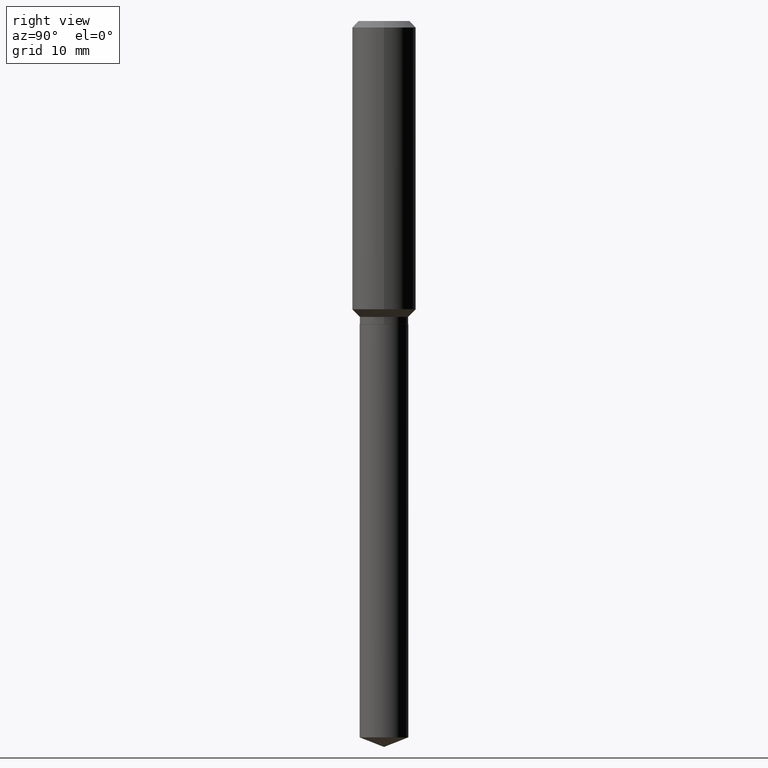
[diagram: clean part render]
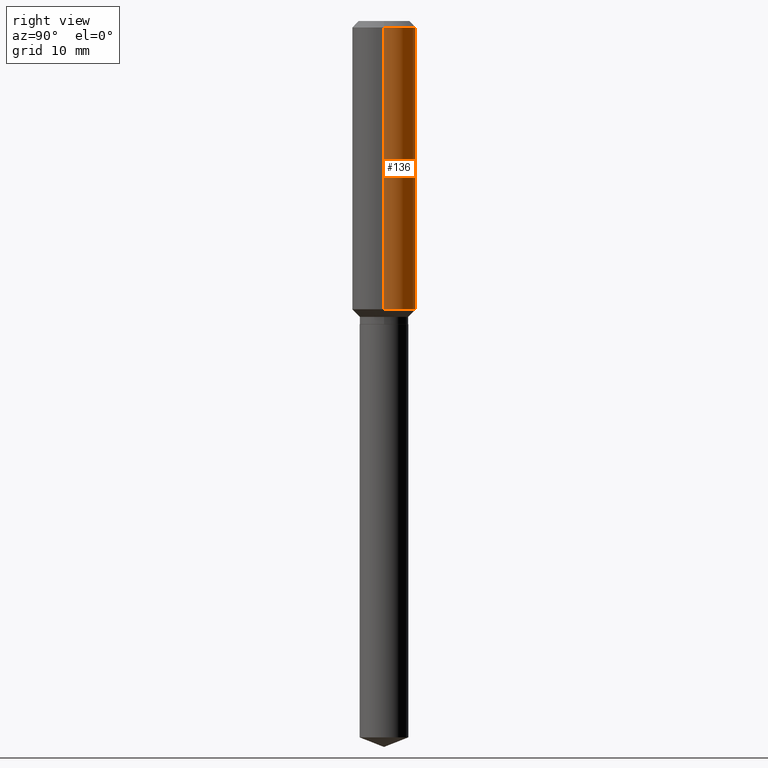
[diagram: same view with one face highlighted and labeled with its STEP entity id]
A machine part, right view. The second image highlights one B-rep face of the part: STEP entity #136.
In plain terms, the highlighted cylindrical surface (edge-blend (fillet) strip) has radius 4.0005 mm, axis along (-0, 0, 1).
Its self-contained STEP definition (entity closure, byte-faithful):
#7 = CIRCLE ( 'NONE', #391, 0.1575000000000001676 ) ;
#20 = CARTESIAN_POINT ( 'NONE',  ( 7.703226739483226971E-31, -1.099816621735597538E-16, -0.03150000000000019451 ) ) ;
#26 = CYLINDRICAL_SURFACE ( 'NONE', #152, 0.1575000000000000844 ) ;
#29 = CARTESIAN_POINT ( 'NONE',  ( -0.1575000000000000844, 1.119104808822158392E-15, -7.747322767151481189E-30 ) ) ;
#37 = CARTESIAN_POINT ( 'NONE',  ( 3.478923923678974203E-29, -4.966981352638257591E-15, -1.422599999999999643 ) ) ;
#39 = DIRECTION ( 'NONE',  ( 1.000000000000000000, -6.982962677686267499E-15, 0.000000000000000000 ) ) ;
#55 = VERTEX_POINT ( 'NONE', #94 ) ;
#62 = LINE ( 'NONE', #29, #143 ) ;
#90 = VECTOR ( 'NONE', #291, 39.37007874015748143 ) ;
#94 = CARTESIAN_POINT ( 'NONE',  ( -0.1575000000000001676, -3.847876543816099199E-15, -1.422599999999999643 ) ) ;
#95 = CARTESIAN_POINT ( 'NONE',  ( 0.1575000000000000844, -1.099816621735587677E-15, 7.679978421878603638E-30 ) ) ;
#98 = EDGE_CURVE ( 'NONE', #464, #174, #247, .T. ) ;
#127 = DIRECTION ( 'NONE',  ( 1.000000000000000000, -6.982962677686265922E-15, 0.000000000000000000 ) ) ;
#136 = ADVANCED_FACE ( 'NONE', ( #258 ), #26, .T. ) ;
#138 = CARTESIAN_POINT ( 'NONE',  ( 0.1575000000000000011, -1.209798283909146741E-15, -0.03150000000000019451 ) ) ;
#139 = ORIENTED_EDGE ( 'NONE', *, *, #167, .T. ) ;
#143 = VECTOR ( 'NONE', #173, 39.37007874015748143 ) ;
#152 = AXIS2_PLACEMENT_3D ( 'NONE', #170, #168, #474 ) ;
#167 = EDGE_CURVE ( 'NONE', #55, #249, #62, .T. ) ;
#168 = DIRECTION ( 'NONE',  ( -2.445468806185136597E-29, 3.491481338843145583E-15, 1.000000000000000000 ) ) ;
#170 = CARTESIAN_POINT ( 'NONE',  ( 0.000000000000000000, 0.000000000000000000, 0.000000000000000000 ) ) ;
#173 = DIRECTION ( 'NONE',  ( -2.445468806185136877E-29, 3.491481338843145188E-15, 1.000000000000000000 ) ) ;
#174 = VERTEX_POINT ( 'NONE', #138 ) ;
#186 = EDGE_CURVE ( 'NONE', #464, #55, #7, .T. ) ;
#189 = CARTESIAN_POINT ( 'NONE',  ( -0.1575000000000000011, -1.419376698583750132E-15, -0.03150000000000019451 ) ) ;
#201 = DIRECTION ( 'NONE',  ( -2.445468806185136597E-29, 3.491481338843145583E-15, 1.000000000000000000 ) ) ;
#206 = ORIENTED_EDGE ( 'NONE', *, *, #186, .T. ) ;
#208 = AXIS2_PLACEMENT_3D ( 'NONE', #20, #201, #127 ) ;
#230 = DIRECTION ( 'NONE',  ( -2.445468806185136597E-29, 3.491481338843145583E-15, 1.000000000000000000 ) ) ;
#247 = LINE ( 'NONE', #95, #90 ) ;
#249 = VERTEX_POINT ( 'NONE', #189 ) ;
#258 = FACE_OUTER_BOUND ( 'NONE', #430, .T. ) ;
#291 = DIRECTION ( 'NONE',  ( -2.445468806185136877E-29, 3.491481338843145188E-15, 1.000000000000000000 ) ) ;
#321 = ORIENTED_EDGE ( 'NONE', *, *, #366, .F. ) ;
#366 = EDGE_CURVE ( 'NONE', #174, #249, #422, .T. ) ;
#391 = AXIS2_PLACEMENT_3D ( 'NONE', #37, #230, #39 ) ;
#416 = CARTESIAN_POINT ( 'NONE',  ( 0.1575000000000001676, -6.066797974373846649E-15, -1.422599999999999643 ) ) ;
#422 = CIRCLE ( 'NONE', #208, 0.1575000000000000011 ) ;
#430 = EDGE_LOOP ( 'NONE', ( #206, #139, #321, #484 ) ) ;
#464 = VERTEX_POINT ( 'NONE', #416 ) ;
#474 = DIRECTION ( 'NONE',  ( 1.000000000000000000, -6.982962677686267499E-15, 4.876176775795936353E-29 ) ) ;
#484 = ORIENTED_EDGE ( 'NONE', *, *, #98, .F. ) ;